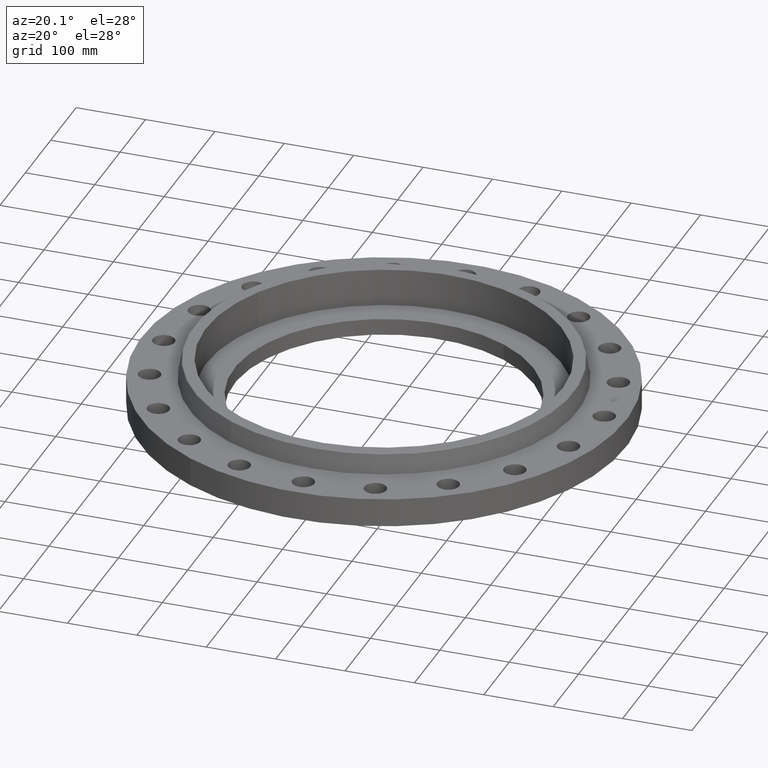
[diagram: clean part render]
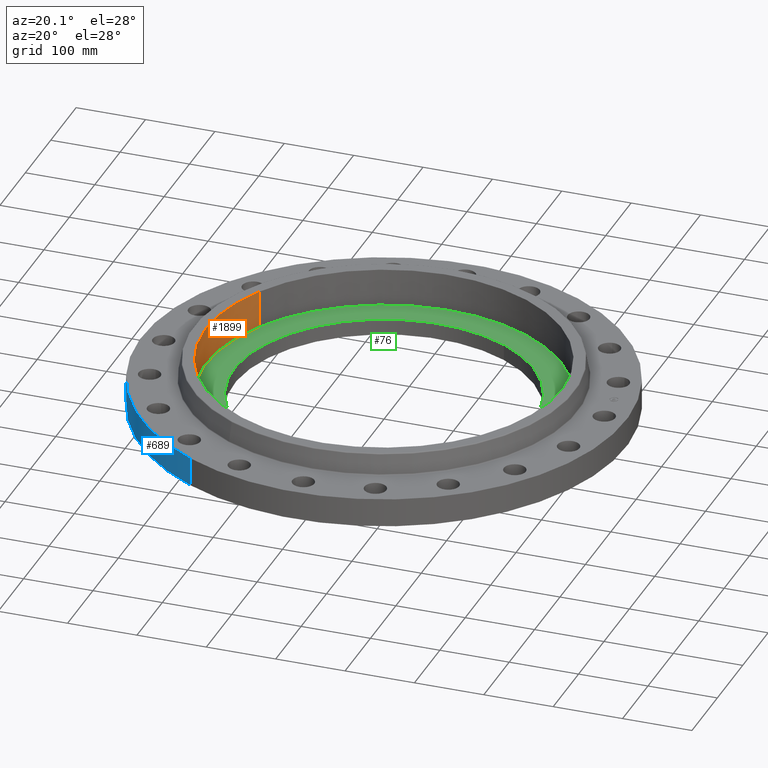
[diagram: same view with three faces highlighted in distinct colors, each labeled with its STEP entity id]
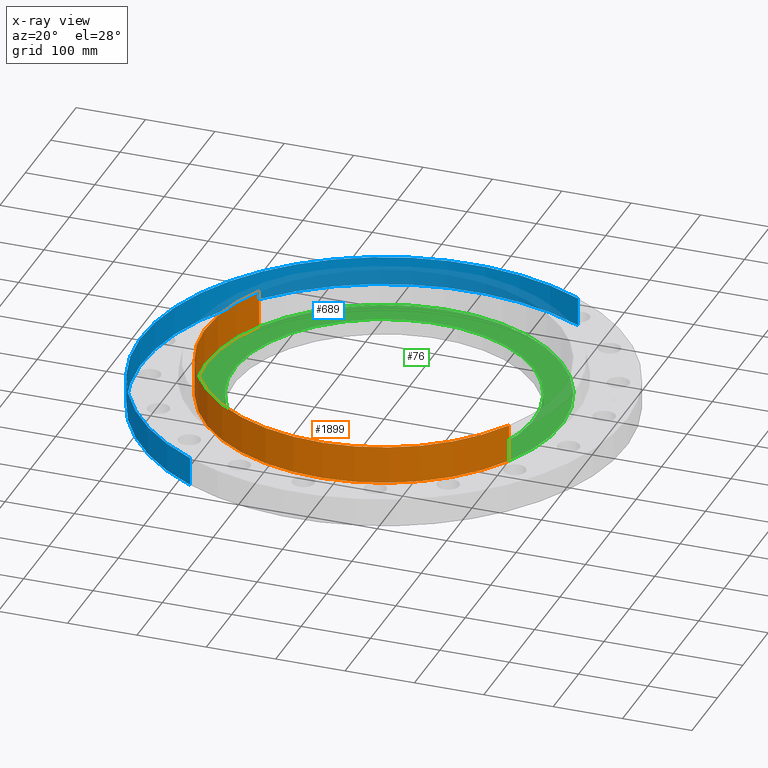
[diagram: x-ray of the same camera — body ghosted, the three highlighted faces saturated]
A machine part, auxiliary view with three faces highlighted in distinct colors.
The next image is the same camera in x-ray (body ghosted, the three faces saturated) — at least one of them is partly hidden behind the body in this view.
Their STEP definitions:

[orange] entity #1899 — the highlighted cylindrical surface (partial cylindrical patch) has radius 256.54 mm, axis along (0, 0, -1).
#51=AXIS2_PLACEMENT_3D('Circle Axis2P3D',#49,#50,$) ;
#1834=AXIS2_PLACEMENT_3D('Circle Axis2P3D',#1832,#1833,$) ;
#1874=AXIS2_PLACEMENT_3D('Cylinder Axis2P3D',#1871,#1872,#1873) ;
#44=CARTESIAN_POINT('Vertex',(-8.86358387513,4.84219793992,0.680000000003)) ;
#46=CARTESIAN_POINT('Vertex',(8.86358387513,-4.84219793992,0.680000000003)) ;
#49=CARTESIAN_POINT('Axis2P3D Location',(1.04902962957E-016,-6.99353086378E-017,0.680000000003)) ;
#1827=CARTESIAN_POINT('Vertex',(-8.86358387513,4.84219793992,2.81000000001)) ;
#1829=CARTESIAN_POINT('Vertex',(8.86358387513,-4.84219793992,2.81000000001)) ;
#1832=CARTESIAN_POINT('Axis2P3D Location',(-2.79741234551E-016,0.,2.81000000001)) ;
#1871=CARTESIAN_POINT('Axis2P3D Location',(1.04902962957E-016,-6.99353086378E-017,2.80606299214)) ;
#1876=CARTESIAN_POINT('Line Origine',(-8.86358387513,4.84219793992,1.74500000001)) ;
#1881=CARTESIAN_POINT('Line Origine',(8.86358387513,-4.84219793992,1.74500000001)) ;
#50=DIRECTION('Axis2P3D Direction',(0.,0.,-0.0393700787402)) ;
#1833=DIRECTION('Axis2P3D Direction',(0.,0.,-0.0393700787402)) ;
#1872=DIRECTION('Axis2P3D Direction',(0.,0.,-0.0393700787402)) ;
#1873=DIRECTION('Axis2P3D XDirection',(0.0345504945626,-0.0188750212049,0.)) ;
#1877=DIRECTION('Vector Direction',(0.,0.,-0.0393700787402)) ;
#1882=DIRECTION('Vector Direction',(0.,0.,-0.0393700787402)) ;
#1878=VECTOR('Line Direction',#1877,0.0393700787402) ;
#1883=VECTOR('Line Direction',#1882,0.0393700787402) ;
#1894=ORIENTED_EDGE('',*,*,#1836,.F.) ;
#1895=ORIENTED_EDGE('',*,*,#1885,.F.) ;
#1896=ORIENTED_EDGE('',*,*,#53,.T.) ;
#1897=ORIENTED_EDGE('',*,*,#1880,.T.) ;
#1899=ADVANCED_FACE('PartBody',(#1898),#1875,.F.) ;
#52=CIRCLE('generated circle',#51,10.1) ;
#1835=CIRCLE('generated circle',#1834,10.1) ;
#1875=CYLINDRICAL_SURFACE('generated cylinder',#1874,10.1) ;
#53=EDGE_CURVE('',#47,#45,#52,.T.) ;
#1836=EDGE_CURVE('',#1830,#1828,#1835,.T.) ;
#1880=EDGE_CURVE('',#45,#1828,#1879,.F.) ;
#1885=EDGE_CURVE('',#47,#1830,#1884,.F.) ;
#1893=EDGE_LOOP('',(#1894,#1895,#1896,#1897)) ;
#1898=FACE_OUTER_BOUND('',#1893,.T.) ;
#1879=LINE('Line',#1876,#1878) ;
#1884=LINE('Line',#1881,#1883) ;
#45=VERTEX_POINT('',#44) ;
#47=VERTEX_POINT('',#46) ;
#1828=VERTEX_POINT('',#1827) ;
#1830=VERTEX_POINT('',#1829) ;

[blue] entity #689 — the highlighted cylindrical surface (partial cylindrical patch) has radius 349.25 mm, axis along (0, 0, -1).
#278=AXIS2_PLACEMENT_3D('Circle Axis2P3D',#276,#277,$) ;
#662=AXIS2_PLACEMENT_3D('Cylinder Axis2P3D',#659,#660,#661) ;
#673=AXIS2_PLACEMENT_3D('Circle Axis2P3D',#671,#672,$) ;
#276=CARTESIAN_POINT('Axis2P3D Location',(0.,0.,0.)) ;
#280=CARTESIAN_POINT('Vertex',(-6.59210115583,-12.066760226,1.39870617276E-015)) ;
#282=CARTESIAN_POINT('Vertex',(6.59210115583,12.066760226,1.39870617276E-015)) ;
#659=CARTESIAN_POINT('Axis2P3D Location',(0.,0.,1.28000000001)) ;
#664=CARTESIAN_POINT('Line Origine',(-6.59210115583,-12.066760226,0.810000000003)) ;
#668=CARTESIAN_POINT('Vertex',(-6.59210115583,-12.066760226,1.62000000001)) ;
#671=CARTESIAN_POINT('Axis2P3D Location',(0.,0.,1.62000000001)) ;
#675=CARTESIAN_POINT('Vertex',(6.59210115583,12.066760226,1.62000000001)) ;
#678=CARTESIAN_POINT('Line Origine',(6.59210115583,12.066760226,0.810000000003)) ;
#277=DIRECTION('Axis2P3D Direction',(0.,0.,-0.0393700787402)) ;
#660=DIRECTION('Axis2P3D Direction',(0.,0.,-0.0393700787402)) ;
#661=DIRECTION('Axis2P3D XDirection',(0.0188750212049,0.0345504945626,0.)) ;
#665=DIRECTION('Vector Direction',(0.,0.,-0.0393700787402)) ;
#672=DIRECTION('Axis2P3D Direction',(0.,0.,-0.0393700787402)) ;
#679=DIRECTION('Vector Direction',(0.,0.,-0.0393700787402)) ;
#666=VECTOR('Line Direction',#665,0.0393700787402) ;
#680=VECTOR('Line Direction',#679,0.0393700787402) ;
#684=ORIENTED_EDGE('',*,*,#284,.F.) ;
#685=ORIENTED_EDGE('',*,*,#670,.T.) ;
#686=ORIENTED_EDGE('',*,*,#677,.T.) ;
#687=ORIENTED_EDGE('',*,*,#682,.F.) ;
#689=ADVANCED_FACE('PartBody',(#688),#663,.T.) ;
#279=CIRCLE('generated circle',#278,13.7500000001) ;
#674=CIRCLE('generated circle',#673,13.7500000001) ;
#663=CYLINDRICAL_SURFACE('generated cylinder',#662,13.7500000001) ;
#284=EDGE_CURVE('',#281,#283,#279,.T.) ;
#670=EDGE_CURVE('',#281,#669,#667,.F.) ;
#677=EDGE_CURVE('',#669,#676,#674,.T.) ;
#682=EDGE_CURVE('',#283,#676,#681,.F.) ;
#683=EDGE_LOOP('',(#684,#685,#686,#687)) ;
#688=FACE_OUTER_BOUND('',#683,.T.) ;
#667=LINE('Line',#664,#666) ;
#681=LINE('Line',#678,#680) ;
#281=VERTEX_POINT('',#280) ;
#283=VERTEX_POINT('',#282) ;
#669=VERTEX_POINT('',#668) ;
#676=VERTEX_POINT('',#675) ;

[green] entity #76 — the highlighted planar face has unit normal (0, 0, -1).
#38=AXIS2_PLACEMENT_3D('Plane Axis2P3D',#35,#36,#37) ;
#42=AXIS2_PLACEMENT_3D('Circle Axis2P3D',#40,#41,$) ;
#51=AXIS2_PLACEMENT_3D('Circle Axis2P3D',#49,#50,$) ;
#60=AXIS2_PLACEMENT_3D('Circle Axis2P3D',#58,#59,$) ;
#69=AXIS2_PLACEMENT_3D('Circle Axis2P3D',#67,#68,$) ;
#35=CARTESIAN_POINT('Axis2P3D Location',(1.04902962957E-016,-6.99353086378E-017,0.680000000003)) ;
#40=CARTESIAN_POINT('Axis2P3D Location',(1.04902962957E-016,-6.99353086378E-017,0.680000000003)) ;
#44=CARTESIAN_POINT('Vertex',(-8.86358387513,4.84219793992,0.680000000003)) ;
#46=CARTESIAN_POINT('Vertex',(8.86358387513,-4.84219793992,0.680000000003)) ;
#49=CARTESIAN_POINT('Axis2P3D Location',(1.04902962957E-016,-6.99353086378E-017,0.680000000003)) ;
#58=CARTESIAN_POINT('Axis2P3D Location',(1.22386790116E-015,2.09805925913E-016,0.680000000003)) ;
#62=CARTESIAN_POINT('Vertex',(-4.07511707815,-7.4594517761,0.680000000003)) ;
#64=CARTESIAN_POINT('Vertex',(4.07511707815,7.4594517761,0.680000000003)) ;
#67=CARTESIAN_POINT('Axis2P3D Location',(-3.25199185166E-015,-1.46864148139E-015,0.680000000003)) ;
#36=DIRECTION('Axis2P3D Direction',(0.,0.,-0.0393700787402)) ;
#37=DIRECTION('Axis2P3D XDirection',(0.0393700787402,0.,0.)) ;
#41=DIRECTION('Axis2P3D Direction',(0.,0.,-0.0393700787402)) ;
#50=DIRECTION('Axis2P3D Direction',(0.,0.,-0.0393700787402)) ;
#59=DIRECTION('Axis2P3D Direction',(0.,0.,-0.0393700787402)) ;
#68=DIRECTION('Axis2P3D Direction',(0.,0.,-0.0393700787402)) ;
#55=ORIENTED_EDGE('',*,*,#48,.F.) ;
#56=ORIENTED_EDGE('',*,*,#53,.F.) ;
#73=ORIENTED_EDGE('',*,*,#66,.T.) ;
#74=ORIENTED_EDGE('',*,*,#71,.T.) ;
#75=FACE_BOUND('',#72,.T.) ;
#76=ADVANCED_FACE('PartBody',(#57,#75),#39,.F.) ;
#43=CIRCLE('generated circle',#42,10.1) ;
#52=CIRCLE('generated circle',#51,10.1) ;
#61=CIRCLE('generated circle',#60,8.50000000003) ;
#70=CIRCLE('generated circle',#69,8.50000000003) ;
#48=EDGE_CURVE('',#45,#47,#43,.T.) ;
#53=EDGE_CURVE('',#47,#45,#52,.T.) ;
#66=EDGE_CURVE('',#63,#65,#61,.T.) ;
#71=EDGE_CURVE('',#65,#63,#70,.T.) ;
#54=EDGE_LOOP('',(#55,#56)) ;
#72=EDGE_LOOP('',(#73,#74)) ;
#57=FACE_OUTER_BOUND('',#54,.T.) ;
#39=PLANE('',#38) ;
#45=VERTEX_POINT('',#44) ;
#47=VERTEX_POINT('',#46) ;
#63=VERTEX_POINT('',#62) ;
#65=VERTEX_POINT('',#64) ;